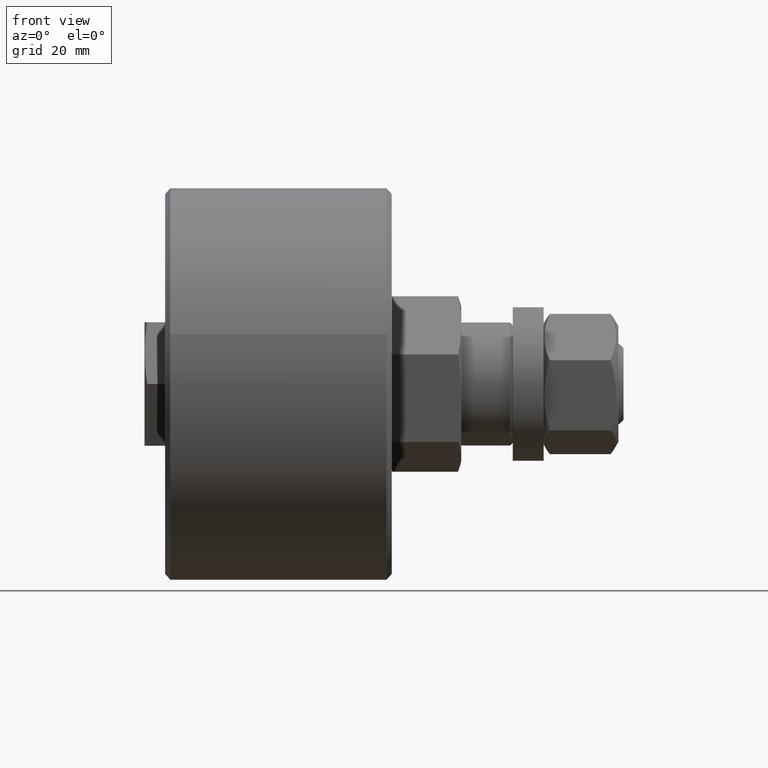
[diagram: clean part render]
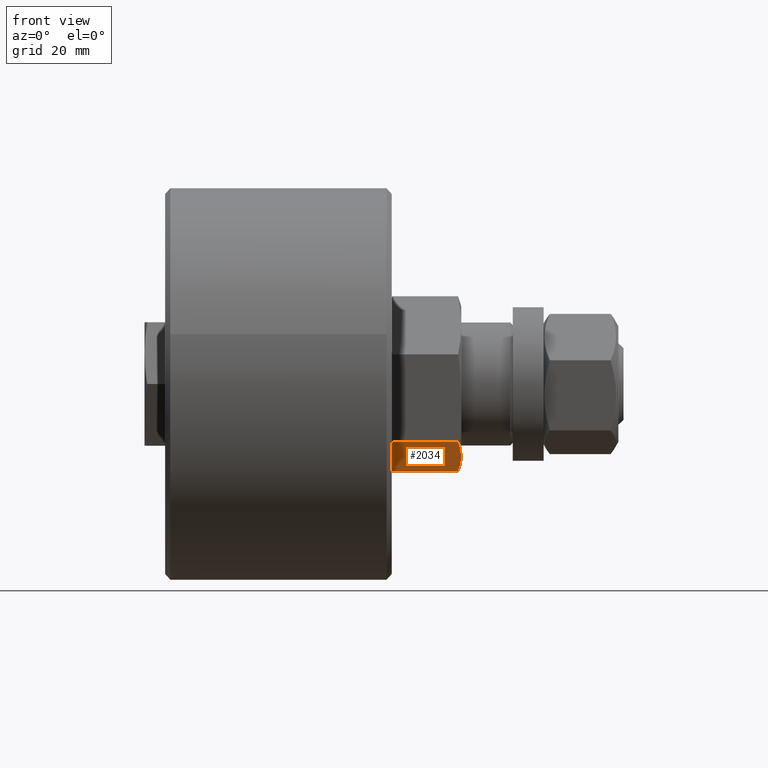
[diagram: same view with one face highlighted and labeled with its STEP entity id]
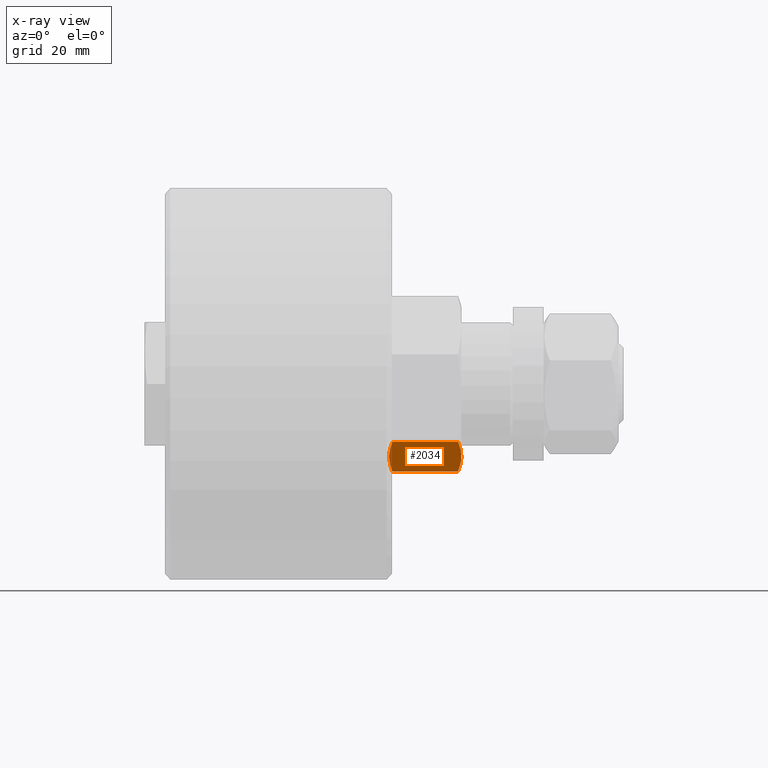
[diagram: x-ray of the same camera — body ghosted, the highlighted face saturated]
A machine part, front view. The second image highlights one B-rep face of the part: STEP entity #2034.
The next image is the same camera in x-ray: the body ghosted, the highlighted face saturated — about 2% of this face is hidden behind the body in this view.
In plain terms, the highlighted planar face has unit normal (0, -0.3326, -0.9431).
Its self-contained STEP definition (entity closure, byte-faithful):
#196=(
BOUNDED_CURVE()
B_SPLINE_CURVE(2,(#3288,#3289,#3290),.UNSPECIFIED.,.F.,.F.)
B_SPLINE_CURVE_WITH_KNOTS((3,3),(0.,0.790327458731379),.UNSPECIFIED.)
CURVE()
GEOMETRIC_REPRESENTATION_ITEM()
RATIONAL_B_SPLINE_CURVE((1.,1.03103791671952,1.))
REPRESENTATION_ITEM('')
);
#198=(
BOUNDED_CURVE()
B_SPLINE_CURVE(2,(#3299,#3300,#3301),.UNSPECIFIED.,.F.,.F.)
B_SPLINE_CURVE_WITH_KNOTS((3,3),(0.,0.790327458731379),.UNSPECIFIED.)
CURVE()
GEOMETRIC_REPRESENTATION_ITEM()
RATIONAL_B_SPLINE_CURVE((1.,1.03103791671952,1.))
REPRESENTATION_ITEM('')
);
#210=(
BOUNDED_CURVE()
B_SPLINE_CURVE(2,(#3365,#3366,#3367),.UNSPECIFIED.,.F.,.F.)
B_SPLINE_CURVE_WITH_KNOTS((3,3),(0.,0.790327458731372),.UNSPECIFIED.)
CURVE()
GEOMETRIC_REPRESENTATION_ITEM()
RATIONAL_B_SPLINE_CURVE((1.,1.03103791671951,1.))
REPRESENTATION_ITEM('')
);
#212=(
BOUNDED_CURVE()
B_SPLINE_CURVE(2,(#3376,#3377,#3378),.UNSPECIFIED.,.F.,.F.)
B_SPLINE_CURVE_WITH_KNOTS((3,3),(0.,0.790327458731372),.UNSPECIFIED.)
CURVE()
GEOMETRIC_REPRESENTATION_ITEM()
RATIONAL_B_SPLINE_CURVE((1.,1.03103791671951,1.))
REPRESENTATION_ITEM('')
);
#253=PLANE('',#2361);
#342=FACE_OUTER_BOUND('',#465,.T.);
#465=EDGE_LOOP('',(#1584,#1585,#1586,#1587,#1588,#1589,#1590,#1591));
#588=LINE('',#3421,#662);
#594=LINE('',#3428,#668);
#600=LINE('',#3437,#674);
#602=LINE('',#3440,#676);
#662=VECTOR('',#2743,10.);
#668=VECTOR('',#2751,10.);
#674=VECTOR('',#2763,10.);
#676=VECTOR('',#2767,10.);
#880=VERTEX_POINT('',#3286);
#881=VERTEX_POINT('',#3287);
#883=VERTEX_POINT('',#3297);
#884=VERTEX_POINT('',#3298);
#901=VERTEX_POINT('',#3363);
#902=VERTEX_POINT('',#3364);
#904=VERTEX_POINT('',#3374);
#905=VERTEX_POINT('',#3375);
#1113=EDGE_CURVE('',#880,#881,#196,.T.);
#1116=EDGE_CURVE('',#883,#884,#198,.T.);
#1134=EDGE_CURVE('',#901,#902,#210,.T.);
#1137=EDGE_CURVE('',#904,#905,#212,.T.);
#1152=EDGE_CURVE('',#884,#880,#588,.T.);
#1158=EDGE_CURVE('',#902,#904,#594,.T.);
#1164=EDGE_CURVE('',#905,#883,#600,.T.);
#1166=EDGE_CURVE('',#901,#881,#602,.T.);
#1584=ORIENTED_EDGE('',*,*,#1116,.T.);
#1585=ORIENTED_EDGE('',*,*,#1152,.T.);
#1586=ORIENTED_EDGE('',*,*,#1113,.T.);
#1587=ORIENTED_EDGE('',*,*,#1166,.F.);
#1588=ORIENTED_EDGE('',*,*,#1134,.T.);
#1589=ORIENTED_EDGE('',*,*,#1158,.T.);
#1590=ORIENTED_EDGE('',*,*,#1137,.T.);
#1591=ORIENTED_EDGE('',*,*,#1164,.T.);
#2034=ADVANCED_FACE('',(#342),#253,.T.);
#2361=AXIS2_PLACEMENT_3D('',#3442,#2770,#2771);
#2743=DIRECTION('',(0.,0.,1.));
#2751=DIRECTION('',(0.,0.,-1.));
#2763=DIRECTION('',(-1.,0.,0.));
#2767=DIRECTION('',(-1.,0.,0.));
#2770=DIRECTION('center_axis',(0.,1.,0.));
#2771=DIRECTION('ref_axis',(0.,0.,-1.));
#3286=CARTESIAN_POINT('',(1.5,15.,0.784641862145888));
#3287=CARTESIAN_POINT('',(2.11628314259158,15.,8.66025403784438));
#3288=CARTESIAN_POINT('Ctrl Pts',(1.5,15.,0.784641862145854));
#3289=CARTESIAN_POINT('Ctrl Pts',(1.55119818764891,15.,4.44240251296674));
#3290=CARTESIAN_POINT('Ctrl Pts',(2.11628314259158,15.,8.66025403784439));
#3297=CARTESIAN_POINT('',(2.11628314259158,15.,-8.66025403784439));
#3298=CARTESIAN_POINT('',(1.5,15.,-0.784641862145888));
#3299=CARTESIAN_POINT('Ctrl Pts',(2.11628314259158,15.,-8.66025403784439));
#3300=CARTESIAN_POINT('Ctrl Pts',(1.55119818764891,15.,-4.44240251296674));
#3301=CARTESIAN_POINT('Ctrl Pts',(1.5,15.,-0.784641862145854));
#3363=CARTESIAN_POINT('',(14.8837168574084,15.,8.66025403784438));
#3364=CARTESIAN_POINT('',(15.5,15.,0.784641862145888));
#3365=CARTESIAN_POINT('Ctrl Pts',(14.8837168574084,15.,8.6602540378444));
#3366=CARTESIAN_POINT('Ctrl Pts',(15.4488018123511,15.,4.44240251296679));
#3367=CARTESIAN_POINT('Ctrl Pts',(15.5,15.,0.784641862145928));
#3374=CARTESIAN_POINT('',(15.5,15.,-0.784641862145888));
#3375=CARTESIAN_POINT('',(14.8837168574084,15.,-8.66025403784439));
#3376=CARTESIAN_POINT('Ctrl Pts',(15.5,15.,-0.784641862145928));
#3377=CARTESIAN_POINT('Ctrl Pts',(15.4488018123511,15.,-4.44240251296679));
#3378=CARTESIAN_POINT('Ctrl Pts',(14.8837168574084,15.,-8.6602540378444));
#3421=CARTESIAN_POINT('',(1.5,15.,-5.55111512312578E-16));
#3428=CARTESIAN_POINT('',(15.5,15.,8.66025403784439));
#3437=CARTESIAN_POINT('',(15.5,15.,-8.66025403784439));
#3440=CARTESIAN_POINT('',(15.5,15.,8.66025403784439));
#3442=CARTESIAN_POINT('Origin',(15.5,15.,-1.11022302462516E-15));